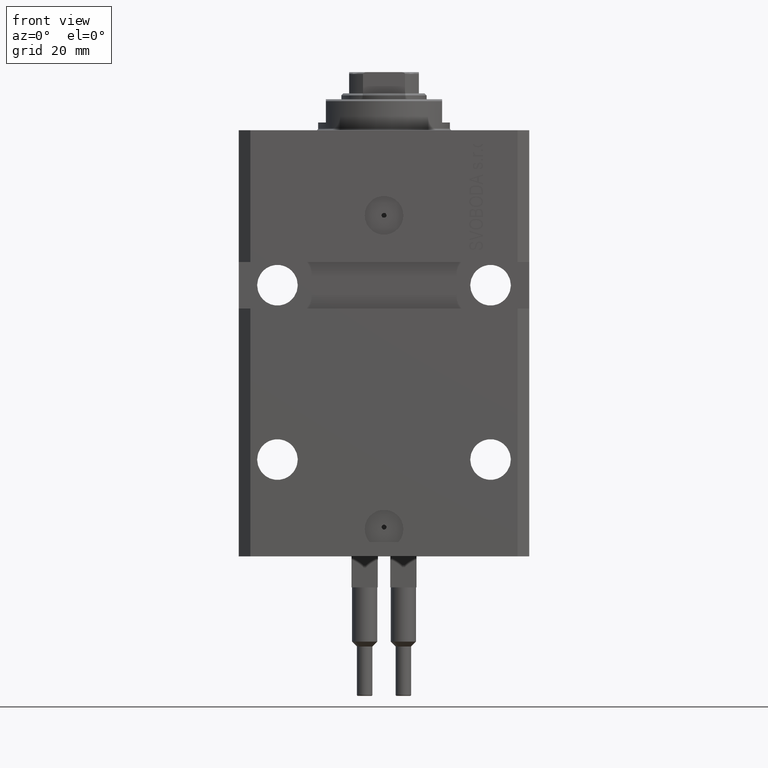
[diagram: clean part render]
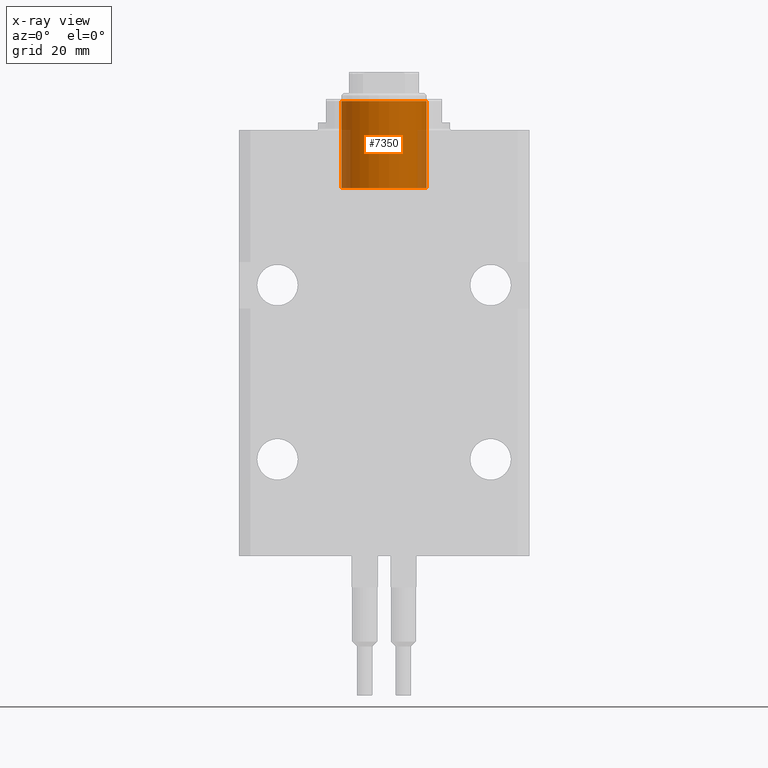
[diagram: x-ray — body ghosted, one internal face saturated and labeled with its STEP entity id]
A machine part, front view, then the same camera in x-ray: the body is ghosted and one INTERNAL B-rep face — a face not visible from any outside direction — is saturated and labeled: STEP entity #7350.
In plain terms, the highlighted cylindrical surface (partial cylindrical patch) has radius 11 mm, axis along (0, -0, 1).
Its self-contained STEP definition (entity closure, byte-faithful):
#3243 = VERTEX_POINT ( 'NONE', #4659 ) ;
#4659 = CARTESIAN_POINT ( 'NONE',  ( -11.00000000000000000, 0.000000000000000000, -7.500000000000000000 ) ) ;
#5784 = EDGE_LOOP ( 'NONE', ( #42952, #23374, #30324, #42020 ) ) ;
#6115 = VERTEX_POINT ( 'NONE', #40849 ) ;
#6213 = CARTESIAN_POINT ( 'NONE',  ( -11.00000000000000000, 0.000000000000000000, 15.00000000000000000 ) ) ;
#7315 = FACE_OUTER_BOUND ( 'NONE', #5784, .T. ) ;
#7350 = ADVANCED_FACE ( 'NONE', ( #7315 ), #11473, .F. ) ;
#8177 = CIRCLE ( 'NONE', #35710, 11.00000000000000000 ) ;
#8919 = DIRECTION ( 'NONE',  ( -0.000000000000000000, -0.000000000000000000, -1.000000000000000000 ) ) ;
#9379 = EDGE_CURVE ( 'NONE', #26928, #3243, #31562, .T. ) ;
#10405 = CARTESIAN_POINT ( 'NONE',  ( 0.000000000000000000, 0.000000000000000000, 15.00000000000000000 ) ) ;
#11069 = CARTESIAN_POINT ( 'NONE',  ( 11.00000000000000000, 1.347111479062088405E-15, 15.00000000000000000 ) ) ;
#11473 = CYLINDRICAL_SURFACE ( 'NONE', #33140, 11.00000000000000000 ) ;
#14663 = CARTESIAN_POINT ( 'NONE',  ( 0.000000000000000000, 0.000000000000000000, 15.00000000000000000 ) ) ;
#16676 = DIRECTION ( 'NONE',  ( -1.000000000000000000, 0.000000000000000000, 0.000000000000000000 ) ) ;
#18119 = EDGE_CURVE ( 'NONE', #45110, #26928, #40874, .T. ) ;
#18597 = DIRECTION ( 'NONE',  ( -0.000000000000000000, -0.000000000000000000, -1.000000000000000000 ) ) ;
#19594 = AXIS2_PLACEMENT_3D ( 'NONE', #10405, #44154, #32331 ) ;
#20371 = CARTESIAN_POINT ( 'NONE',  ( 0.000000000000000000, 0.000000000000000000, -7.500000000000000000 ) ) ;
#20573 = VECTOR ( 'NONE', #26075, 1000.000000000000000 ) ;
#21509 = EDGE_CURVE ( 'NONE', #45110, #6115, #44822, .T. ) ;
#22873 = VECTOR ( 'NONE', #8919, 1000.000000000000000 ) ;
#23374 = ORIENTED_EDGE ( 'NONE', *, *, #21509, .T. ) ;
#26075 = DIRECTION ( 'NONE',  ( -0.000000000000000000, -0.000000000000000000, -1.000000000000000000 ) ) ;
#26928 = VERTEX_POINT ( 'NONE', #43774 ) ;
#29300 = CARTESIAN_POINT ( 'NONE',  ( 11.00000000000000000, 1.347111479062088405E-15, 15.00000000000000000 ) ) ;
#30324 = ORIENTED_EDGE ( 'NONE', *, *, #30787, .T. ) ;
#30787 = EDGE_CURVE ( 'NONE', #6115, #3243, #8177, .T. ) ;
#31562 = LINE ( 'NONE', #6213, #22873 ) ;
#32331 = DIRECTION ( 'NONE',  ( -1.000000000000000000, 0.000000000000000000, 0.000000000000000000 ) ) ;
#33140 = AXIS2_PLACEMENT_3D ( 'NONE', #14663, #18597, #41529 ) ;
#35710 = AXIS2_PLACEMENT_3D ( 'NONE', #20371, #38157, #16676 ) ;
#38157 = DIRECTION ( 'NONE',  ( 0.000000000000000000, 0.000000000000000000, -1.000000000000000000 ) ) ;
#40849 = CARTESIAN_POINT ( 'NONE',  ( 11.00000000000000000, 1.347111479062088405E-15, -7.500000000000000000 ) ) ;
#40874 = CIRCLE ( 'NONE', #19594, 11.00000000000000000 ) ;
#41529 = DIRECTION ( 'NONE',  ( -1.000000000000000000, 0.000000000000000000, 0.000000000000000000 ) ) ;
#42020 = ORIENTED_EDGE ( 'NONE', *, *, #9379, .F. ) ;
#42952 = ORIENTED_EDGE ( 'NONE', *, *, #18119, .F. ) ;
#43774 = CARTESIAN_POINT ( 'NONE',  ( -11.00000000000000000, 0.000000000000000000, 15.00000000000000000 ) ) ;
#44154 = DIRECTION ( 'NONE',  ( 0.000000000000000000, 0.000000000000000000, -1.000000000000000000 ) ) ;
#44822 = LINE ( 'NONE', #11069, #20573 ) ;
#45110 = VERTEX_POINT ( 'NONE', #29300 ) ;